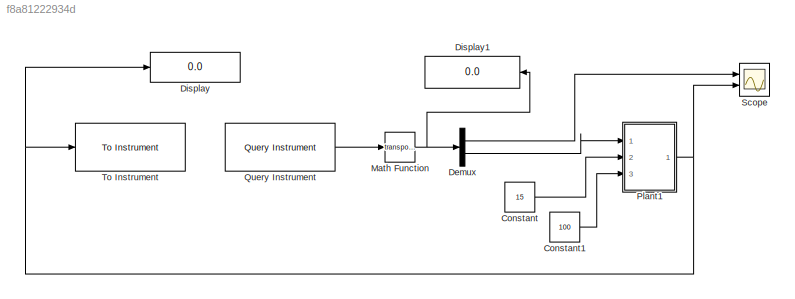
MODEL slx_f8a81222934d
KIND model
CONFIG AbsTol = auto
CONFIG FixedStep = auto
CONFIG MaxStep = auto
CONFIG MinStep = auto
CONFIG RelTol = 1e-3
CONFIG SampleTimeConstraint = Unconstrained
CONFIG Solver = VariableStepAuto
CONFIG SolverMode = Auto
CONFIG SolverName = VariableStepAuto
CONFIG StartTime = 0.0
CONFIG StopTime = 3000
BLOCK [Constant] Constant
  Value = 15
BLOCK [Constant] Constant1
  Value = 100
BLOCK [Demux] Demux
  DisplayOption = bar
  Outputs = 2
  Ports = [1, 2]
BLOCK [Display] Display
  Decimation = 1
  Ports = [1]
BLOCK [Display] Display1
  Decimation = 1
  Ports = [1]
BLOCK [Math] Math Function
  Operator = transpose
  Ports = [1, 1]
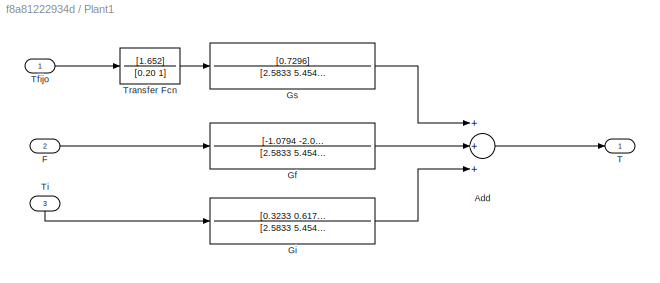
BLOCK [SubSystem] Plant1
  Ports = [3, 1]
  RequestExecContextInheritance = off
  Variant = off
BLOCK [Sum] Plant1/Add
  InputSameDT = off
  Inputs = +++
  OutDataTypeStr = Inherit: Inherit via internal rule
  Ports = [3, 1]
  SaturateOnIntegerOverflow = off
BLOCK [Inport] Plant1/F
  IconDisplay = Port number
  Port = 2
BLOCK [TransferFcn] Plant1/Gf
  Denominator = [2.5833 5.4540 0.6170]
  Numerator = [-1.0794 -2.0600]
BLOCK [TransferFcn] Plant1/Gi
  Denominator = [2.5833 5.4540  0.6170]
  Numerator = [0.3233 0.6170]
BLOCK [TransferFcn] Plant1/Gs
  Denominator = [2.5833 5.4540  0.6170]
  Numerator = [0.7296]
BLOCK [Outport] Plant1/T
  IconDisplay = Port number
BLOCK [Inport] Plant1/Tfijo
  IconDisplay = Port number
BLOCK [Inport] Plant1/Ti
  IconDisplay = Port number
  Port = 3
BLOCK [TransferFcn] Plant1/Transfer Fcn
  Denominator = [0.20 1]
  Numerator = [1.652]
BLOCK [Reference] Query Instrument  REF=instrumentlib/Query Instrument
  Ports = [0, 1]
  SourceBlock = instrumentlib/Query Instrument
  SourceType = queryinstrument
BLOCK [Scope] Scope
  NumInputPorts = 2
  Ports = [2]
  ScopeSpecificationString = Simulink.scopes.TimeScopeBlockCfg('CurrentConfiguration', extmgr.ConfigurationSet(extmgr.Configuration('Core','General UI',true),extmgr.Configuration('Core','Source UI',true),extmgr.Configuration('Sources','WiredSimulink',true,'DataLoggingLimitDataPoints',true,'DataLoggingSaveFormat','Array','DataLoggingDecimation','1','DataLoggingDecimateData',true),extmgr.Configuration('Visuals','Time Domain',tr...<+1760ch>
BLOCK [Reference] To Instrument  REF=instrumentlib/To Instrument
  Ports = [1]
  SourceBlock = instrumentlib/To Instrument
  SourceType = toinstrument
LINE Constant1:1 -> Plant1:3
LINE Constant:1 -> Plant1:2
LINE Demux:1 -> Scope:1
LINE Demux:2 -> Plant1:1
NET Math Function:1 -> Demux:1, Display1:1
LINE Plant1/Add:1 -> Plant1/T:1
LINE Plant1/F:1 -> Plant1/Gf:1
LINE Plant1/Gf:1 -> Plant1/Add:2
LINE Plant1/Gi:1 -> Plant1/Add:3
LINE Plant1/Gs:1 -> Plant1/Add:1
LINE Plant1/Tfijo:1 -> Plant1/Transfer Fcn:1
LINE Plant1/Ti:1 -> Plant1/Gi:1
LINE Plant1/Transfer Fcn:1 -> Plant1/Gs:1
NET Plant1:1 -> Display:1, Scope:2, To Instrument:1
LINE Query Instrument:1 -> Math Function:1
note: NET lines group one-source signal fan-out (src -> all destinations, sorted); 1:1 wires keep LINE
